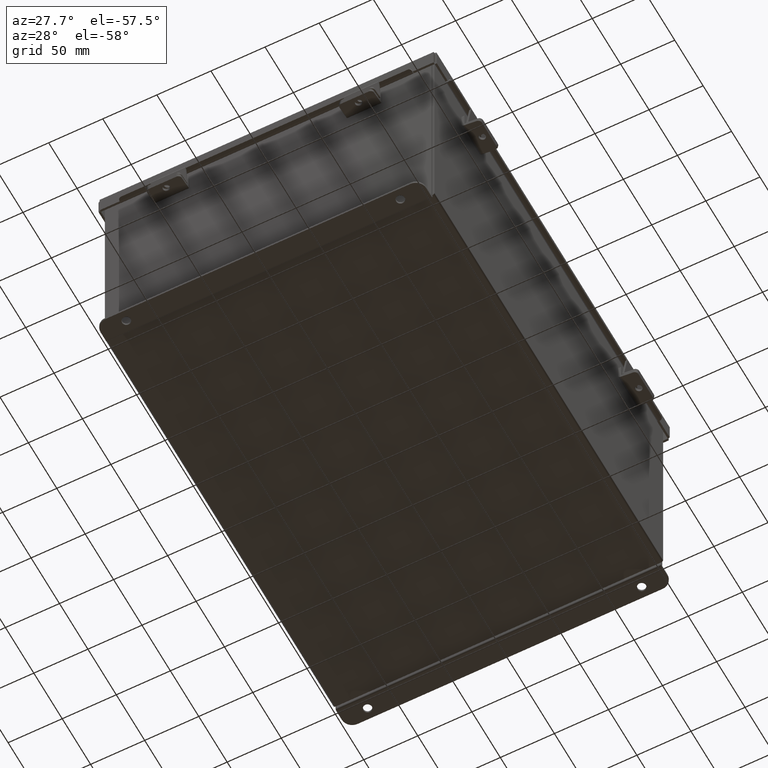
[diagram: clean part render]
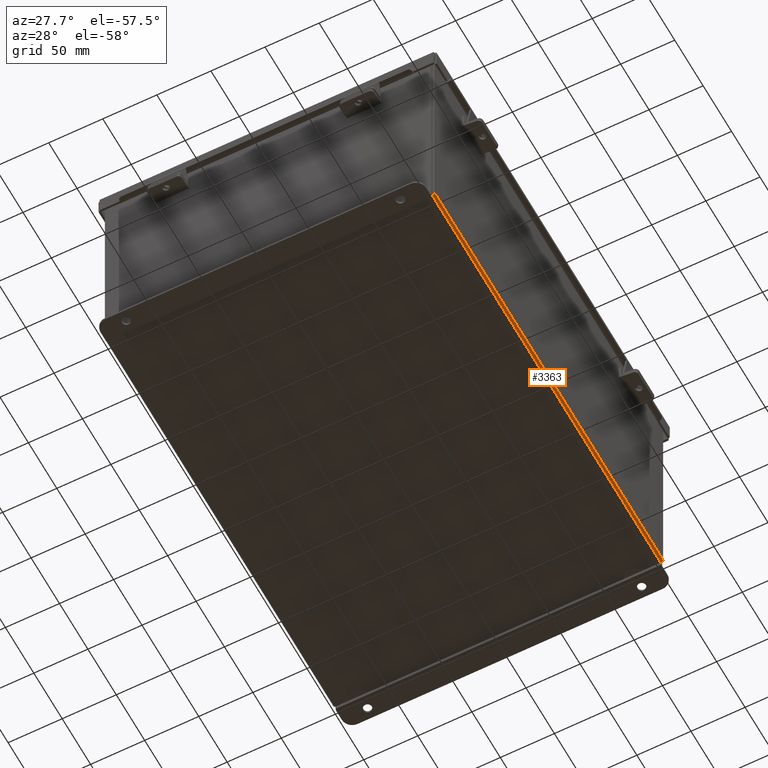
[diagram: same view with one face highlighted and labeled with its STEP entity id]
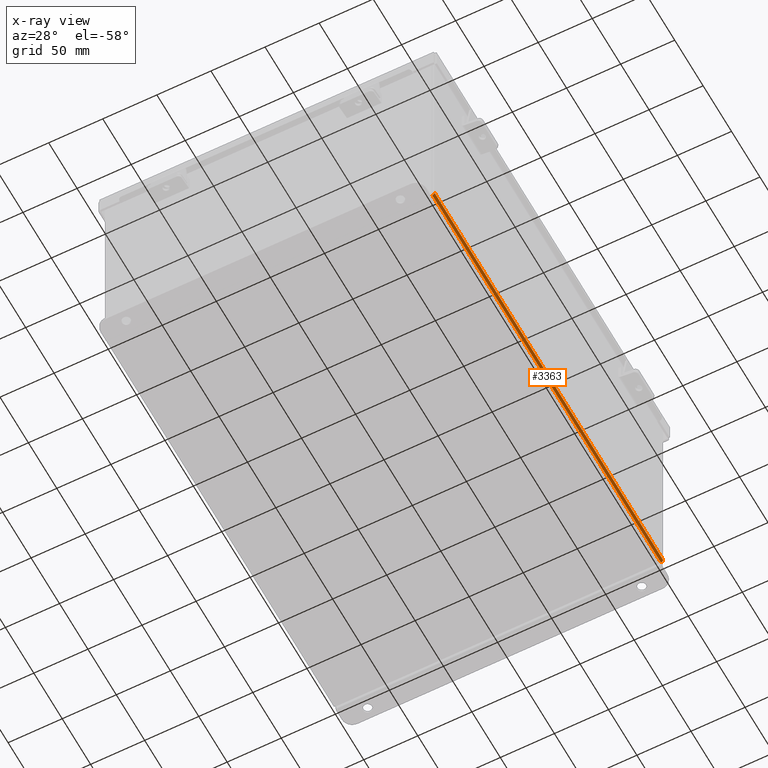
[diagram: x-ray of the same camera — body ghosted, the highlighted face saturated]
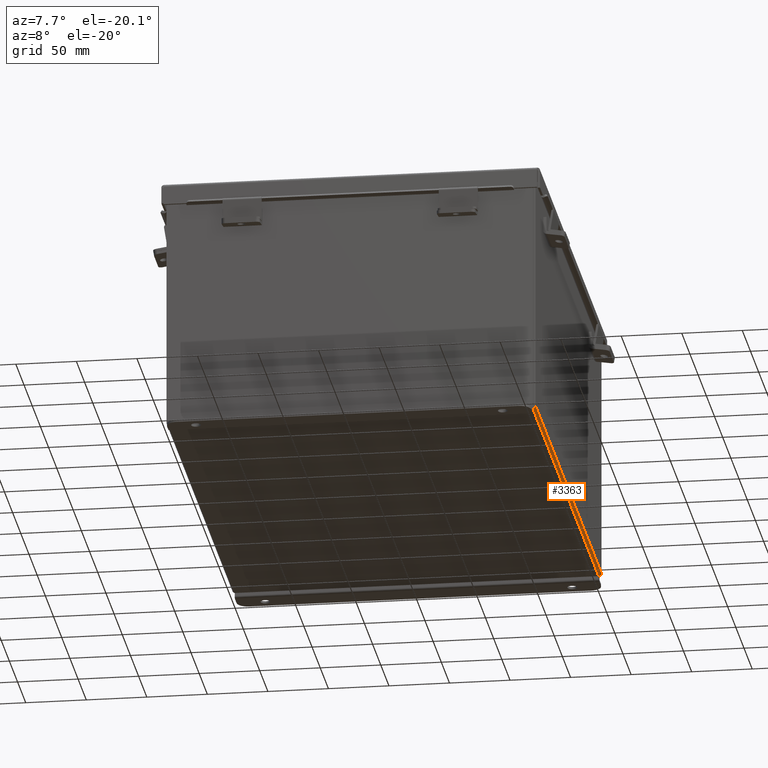
[diagram: same view with one face highlighted and labeled with its STEP entity id]
A machine part, auxiliary view. The second image highlights one B-rep face of the part: STEP entity #3363.
The next image is the same camera in x-ray: the body ghosted, the highlighted face saturated — about 0% of this face is hidden behind the body in this view.
A second angle (auxiliary view) of the same face is appended — the face is thin or edge-on in the first view.
In plain terms, the highlighted cylindrical surface (edge-blend (fillet) strip) has radius 2.2276 mm, axis along (0, 1, 0).
Its self-contained STEP definition (entity closure, byte-faithful):
#24 = CARTESIAN_POINT ( 'NONE',  ( 6.000000000000000900, -7.925300000000000000, 0.01299999999999984300 ) ) ;
#152 = DIRECTION ( 'NONE',  ( 1.000000000000000000, 0.0000000000000000000, -3.480030137311043200E-015 ) ) ;
#763 = LINE ( 'NONE', #2468, #2722 ) ;
#784 = CIRCLE ( 'NONE', #6634, 0.08770000000000009700 ) ;
#1553 = VERTEX_POINT ( 'NONE', #2405 ) ;
#1642 = ORIENTED_EDGE ( 'NONE', *, *, #9801, .T. ) ;
#2118 = CARTESIAN_POINT ( 'NONE',  ( 5.912300000000000100, -7.925300000000000000, 0.01300000000000015000 ) ) ;
#2405 = CARTESIAN_POINT ( 'NONE',  ( 5.912300000000000100, 7.925299999999997300, -0.07469999999999994700 ) ) ;
#2468 = CARTESIAN_POINT ( 'NONE',  ( 5.912300000000000100, 7.925300000000000000, -0.07469999999999994700 ) ) ;
#2500 = DIRECTION ( 'NONE',  ( 0.0000000000000000000, 1.000000000000000000, 0.0000000000000000000 ) ) ;
#2722 = VECTOR ( 'NONE', #6297, 39.37007874015748100 ) ;
#2881 = DIRECTION ( 'NONE',  ( 0.0000000000000000000, 0.0000000000000000000, 1.000000000000000000 ) ) ;
#3217 = CARTESIAN_POINT ( 'NONE',  ( 6.000000000000000900, 7.925299999999998200, 0.01299999999999984300 ) ) ;
#3363 = ADVANCED_FACE ( 'NONE', ( #6865 ), #6198, .T. ) ;
#3544 = VERTEX_POINT ( 'NONE', #4374 ) ;
#3564 = LINE ( 'NONE', #5495, #9466 ) ;
#3944 = DIRECTION ( 'NONE',  ( -0.0000000000000000000, -1.000000000000000000, -0.0000000000000000000 ) ) ;
#4374 = CARTESIAN_POINT ( 'NONE',  ( 5.912300000000000100, -7.925300000000000000, -0.07470000000000000300 ) ) ;
#4498 = EDGE_CURVE ( 'NONE', #9830, #1553, #9297, .T. ) ;
#4647 = CARTESIAN_POINT ( 'NONE',  ( 5.912300000000000100, 7.925299999999997300, 0.01300000000000015000 ) ) ;
#4772 = DIRECTION ( 'NONE',  ( 0.0000000000000000000, 1.000000000000000000, 0.0000000000000000000 ) ) ;
#4955 = AXIS2_PLACEMENT_3D ( 'NONE', #4647, #4772, #6092 ) ;
#5196 = ORIENTED_EDGE ( 'NONE', *, *, #7384, .F. ) ;
#5495 = CARTESIAN_POINT ( 'NONE',  ( 6.000000000000000900, -7.925300000000000000, 0.01299999999999984300 ) ) ;
#5569 = ORIENTED_EDGE ( 'NONE', *, *, #8611, .F. ) ;
#5673 = ORIENTED_EDGE ( 'NONE', *, *, #4498, .F. ) ;
#5863 = CARTESIAN_POINT ( 'NONE',  ( 5.912300000000000100, 7.925300000000000000, 0.01300000000000015000 ) ) ;
#6092 = DIRECTION ( 'NONE',  ( 0.0000000000000000000, 0.0000000000000000000, 1.000000000000000000 ) ) ;
#6198 = CYLINDRICAL_SURFACE ( 'NONE', #7491, 0.08770000000000026400 ) ;
#6297 = DIRECTION ( 'NONE',  ( -0.0000000000000000000, -1.000000000000000000, -0.0000000000000000000 ) ) ;
#6634 = AXIS2_PLACEMENT_3D ( 'NONE', #2118, #7431, #2881 ) ;
#6865 = FACE_OUTER_BOUND ( 'NONE', #7197, .T. ) ;
#7197 = EDGE_LOOP ( 'NONE', ( #5569, #5673, #1642, #5196 ) ) ;
#7384 = EDGE_CURVE ( 'NONE', #3544, #7516, #784, .T. ) ;
#7431 = DIRECTION ( 'NONE',  ( -0.0000000000000000000, -1.000000000000000000, -0.0000000000000000000 ) ) ;
#7491 = AXIS2_PLACEMENT_3D ( 'NONE', #5863, #2500, #152 ) ;
#7516 = VERTEX_POINT ( 'NONE', #24 ) ;
#8611 = EDGE_CURVE ( 'NONE', #1553, #3544, #763, .T. ) ;
#9297 = CIRCLE ( 'NONE', #4955, 0.08770000000000009700 ) ;
#9466 = VECTOR ( 'NONE', #3944, 39.37007874015748100 ) ;
#9801 = EDGE_CURVE ( 'NONE', #9830, #7516, #3564, .T. ) ;
#9830 = VERTEX_POINT ( 'NONE', #3217 ) ;